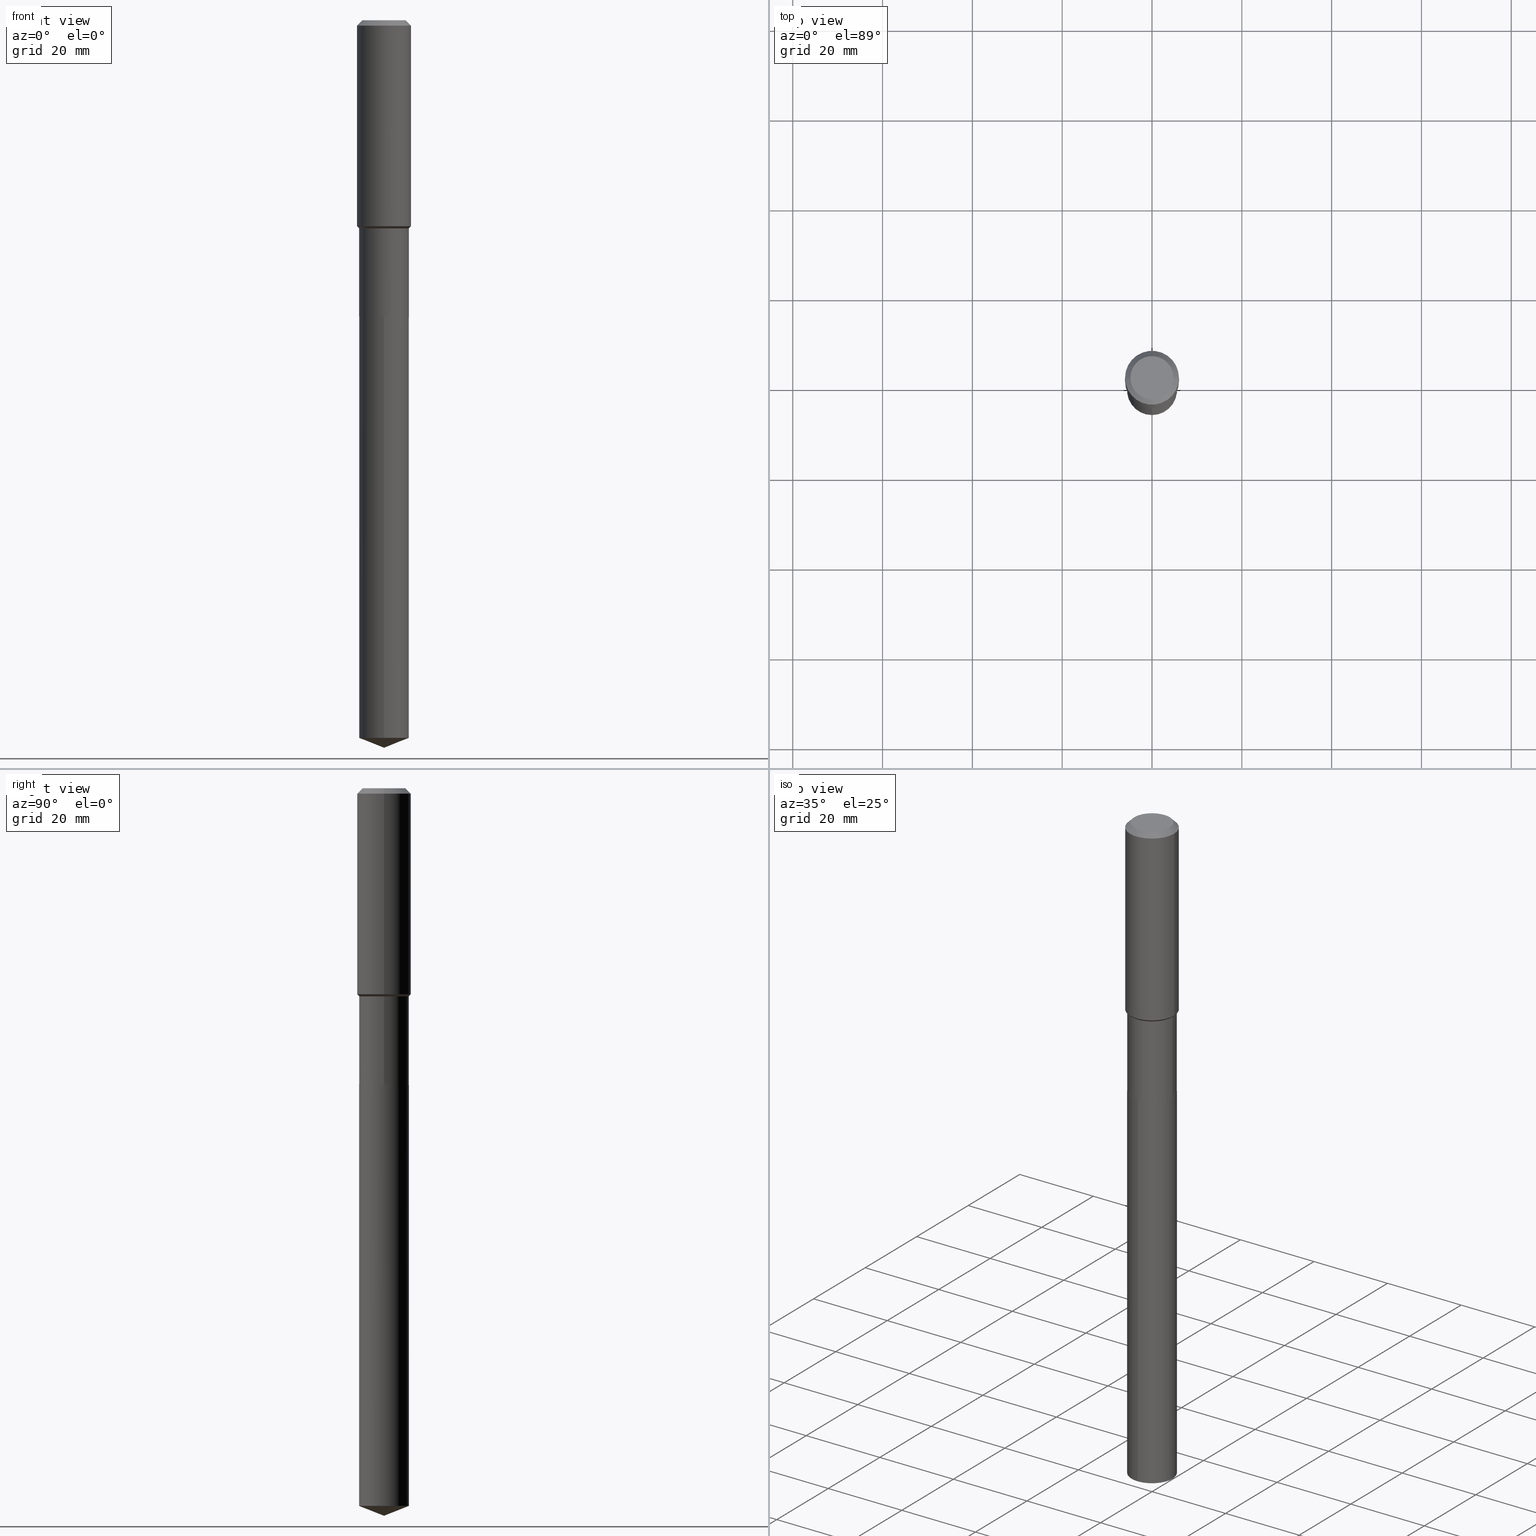
[diagram: canonical four-view strip — front | top / right | iso, engineering-drawing reading convention]
A machine part, canonical four-view strip (front | top / right | iso — engineering-drawing reading convention). The complete STEP part file that produces these views, byte-faithful:
ISO-10303-21;
HEADER;
FILE_DESCRIPTION (( 'STEP AP203' ),
    '1' );
FILE_NAME ('66687.STEP',
    '2024-04-25T03:43:11',
    ( '' ),
    ( '' ),
    'SwSTEP 2.0',
    'SolidWorks 2023',
    '' );
FILE_SCHEMA (( 'CONFIG_CONTROL_DESIGN' ));
ENDSEC;

DATA;
#1 = CONICAL_SURFACE ( 'NONE', #105, 0.2184999999999999165, 0.7853981633974511656 ) ;
#2 = FACE_OUTER_BOUND ( 'NONE', #185, .T. ) ;
#3 = AXIS2_PLACEMENT_3D ( 'NONE', #376, #184, #103 ) ;
#4 = DIRECTION ( 'NONE',  ( 2.445468806185136597E-29, -3.491481338843145583E-15, -1.000000000000000000 ) ) ;
#5 = FACE_OUTER_BOUND ( 'NONE', #130, .T. ) ;
#6 = ORIENTED_EDGE ( 'NONE', *, *, #304, .T. ) ;
#7 =( NAMED_UNIT ( * ) PLANE_ANGLE_UNIT ( ) SI_UNIT ( $, .RADIAN. ) );
#8 = ORIENTED_EDGE ( 'NONE', *, *, #232, .T. ) ;
#9 = EDGE_CURVE ( 'NONE', #129, #104, #203, .T. ) ;
#10 = CC_DESIGN_SECURITY_CLASSIFICATION ( #253, ( #198 ) ) ;
#11 = DIRECTION ( 'NONE',  ( 1.000000000000000000, -6.982962677686266711E-15, 4.876176775795935793E-29 ) ) ;
#12 = LINE ( 'NONE', #320, #197 ) ;
#13 = CALENDAR_DATE ( 2024, 24, 4 ) ;
#14 = CARTESIAN_POINT ( 'NONE',  ( 0.000000000000000000, 0.000000000000000000, 0.000000000000000000 ) ) ;
#15 = PRODUCT ( '66687', '66687', '', ( #349 ) ) ;
#16 = FACE_OUTER_BOUND ( 'NONE', #456, .T. ) ;
#17 = AXIS2_PLACEMENT_3D ( 'NONE', #361, #56, #213 ) ;
#18 = CC_DESIGN_DATE_AND_TIME_ASSIGNMENT ( #92, #53, ( #249 ) ) ;
#19 = DIRECTION ( 'NONE',  ( -2.445449169258695004E-29, 3.491509460039474509E-15, 1.000000000000000000 ) ) ;
#20 = APPROVAL_ROLE ( '' ) ;
#21 = DIRECTION ( 'NONE',  ( 1.000000000000000000, -6.982962677686270655E-15, 0.000000000000000000 ) ) ;
#22 = DIRECTION ( 'NONE',  ( -2.445449169258695004E-29, 3.491509460039474509E-15, 1.000000000000000000 ) ) ;
#23 = CC_DESIGN_APPROVAL ( #201, ( #253 ) ) ;
#24 = LOCAL_TIME ( 23, 43, 11.00000000000000000, #291 ) ;
#25 = CARTESIAN_POINT ( 'NONE',  ( 0.000000000000000000, 0.000000000000000000, 0.000000000000000000 ) ) ;
#26 = ORIENTED_EDGE ( 'NONE', *, *, #133, .F. ) ;
#27 = PLANE ( 'NONE',  #3 ) ;
#28 = ADVANCED_FACE ( 'NONE', ( #2 ), #219, .T. ) ;
#29 = ORIENTED_EDGE ( 'NONE', *, *, #387, .T. ) ;
#30 = EDGE_CURVE ( 'NONE', #150, #463, #12, .T. ) ;
#31 = CARTESIAN_POINT ( 'NONE',  ( -9.427742298522546243E-47, 1.346031739168365344E-32, 3.855188123715862256E-18 ) ) ;
#32 = VERTEX_POINT ( 'NONE', #246 ) ;
#33 = EDGE_CURVE ( 'NONE', #104, #265, #310, .T. ) ;
#34 = CIRCLE ( 'NONE', #161, 0.2361999999999999933 ) ;
#35 = DIRECTION ( 'NONE',  ( 1.000000000000000000, -6.982962677686269077E-15, 0.000000000000000000 ) ) ;
#36 = DIRECTION ( 'NONE',  ( -2.445468806185136597E-29, 3.491481338843145583E-15, 1.000000000000000000 ) ) ;
#37 = ORIENTED_EDGE ( 'NONE', *, *, #193, .T. ) ;
#38 =( LENGTH_UNIT ( ) NAMED_UNIT ( * ) SI_UNIT ( $, .METRE. ) );
#39 = CARTESIAN_POINT ( 'NONE',  ( 1.559683025661503327E-28, -2.226849818518576806E-14, -6.377900000000001235 ) ) ;
#40 = DIRECTION ( 'NONE',  ( 1.000000000000000000, 0.000000000000000000, 0.000000000000000000 ) ) ;
#41 = CIRCLE ( 'NONE', #355, 0.2362000000000002153 ) ;
#42 = ORIENTED_EDGE ( 'NONE', *, *, #335, .F. ) ;
#43 = CIRCLE ( 'NONE', #443, 0.2184999999999999165 ) ;
#44 = FACE_OUTER_BOUND ( 'NONE', #239, .T. ) ;
#45 = VERTEX_POINT ( 'NONE', #313 ) ;
#46 = CARTESIAN_POINT ( 'NONE',  ( 1.552535877635972930E-15, 0.2184999999999909237, -2.598400000000001597 ) ) ;
#47 = DIRECTION ( 'NONE',  ( -2.445449169258695004E-29, 3.491509460039474509E-15, 1.000000000000000000 ) ) ;
#48 = CC_DESIGN_PERSON_AND_ORGANIZATION_ASSIGNMENT ( #470, #360, ( #249 ) ) ;
#49 = ORIENTED_EDGE ( 'NONE', *, *, #206, .F. ) ;
#50 = DIMENSIONAL_EXPONENTS ( 1.000000000000000000, 0.000000000000000000, 0.000000000000000000, 0.000000000000000000, 0.000000000000000000, 0.000000000000000000, 0.000000000000000000 ) ;
#51 = AXIS2_PLACEMENT_3D ( 'NONE', #31, #151, #179 ) ;
#52 = AXIS2_PLACEMENT_3D ( 'NONE', #240, #385, #40 ) ;
#53 = DATE_TIME_ROLE ( 'creation_date' ) ;
#54 = DIRECTION ( 'NONE',  ( -2.445449169258695004E-29, 3.491509460039474509E-15, 1.000000000000000000 ) ) ;
#55 = CALENDAR_DATE ( 2024, 24, 4 ) ;
#56 = DIRECTION ( 'NONE',  ( -2.445468806185136597E-29, 3.491481338843145583E-15, 1.000000000000000000 ) ) ;
#57 = DIRECTION ( 'NONE',  ( -6.982962677686265922E-15, -1.000000000000000000, 2.500547362621751271E-15 ) ) ;
#58 = CONICAL_SURFACE ( 'NONE', #448, 0.2184999999999999165, 0.7853981633974511656 ) ;
#59 = AXIS2_PLACEMENT_3D ( 'NONE', #25, #36, #336 ) ;
#60 = PERSON_AND_ORGANIZATION ( #356, #389 ) ;
#61 = DIRECTION ( 'NONE',  ( -2.445468806185136597E-29, 3.491481338843145583E-15, 1.000000000000000000 ) ) ;
#62 = ADVANCED_FACE ( 'NONE', ( #196 ), #461, .F. ) ;
#63 = COORDINATED_UNIVERSAL_TIME_OFFSET ( 5, 0, .BEHIND. ) ;
#64 = CARTESIAN_POINT ( 'NONE',  ( 0.2179999999999999993, -1.059455097458564211E-14, -2.598400000000001597 ) ) ;
#65 = DIRECTION ( 'NONE',  ( -2.445468806185136597E-29, 3.491481338843145583E-15, 1.000000000000000000 ) ) ;
#66 = VECTOR ( 'NONE', #482, 39.37007874015748143 ) ;
#67 = CARTESIAN_POINT ( 'NONE',  ( -0.2362000000000001043, 1.678301941865357380E-15, -1.161852468318209317E-29 ) ) ;
#68 = EDGE_LOOP ( 'NONE', ( #205, #422 ) ) ;
#69 = CARTESIAN_POINT ( 'NONE',  ( -1.525777345074385639E-15, -0.2185000000000090759, -2.598400000000000265 ) ) ;
#70 = ORIENTED_EDGE ( 'NONE', *, *, #333, .T. ) ;
#71 = CARTESIAN_POINT ( 'NONE',  ( 6.354306145991460877E-29, -9.072265110850034200E-15, -2.598400000000000709 ) ) ;
#72 = VERTEX_POINT ( 'NONE', #224 ) ;
#73 = AXIS2_PLACEMENT_3D ( 'NONE', #444, #327, #323 ) ;
#74 = DIRECTION ( 'NONE',  ( -2.445468806185136877E-29, 3.491481338843145188E-15, 1.000000000000000000 ) ) ;
#75 = CONICAL_SURFACE ( 'NONE', #281, 0.2179999999999999993, 0.7853981633967311859 ) ;
#76 = ADVANCED_FACE ( 'NONE', ( #16 ), #368, .T. ) ;
#77 = DIRECTION ( 'NONE',  ( -0.7071067811865495711, 7.493145998870362049E-15, 0.7071067811865454633 ) ) ;
#78 = ORIENTED_EDGE ( 'NONE', *, *, #335, .T. ) ;
#79 = ORIENTED_EDGE ( 'NONE', *, *, #214, .F. ) ;
#80 = LINE ( 'NONE', #274, #341 ) ;
#81 = ORIENTED_EDGE ( 'NONE', *, *, #206, .T. ) ;
#82 = CARTESIAN_POINT ( 'NONE',  ( -0.2184999999999999443, 1.552535877635818510E-15, -1.074787317220696738E-29 ) ) ;
#83 = CARTESIAN_POINT ( 'NONE',  ( 1.155239464041865331E-30, -1.649375784469511612E-16, -0.04724000000000027483 ) ) ;
#84 = EDGE_CURVE ( 'NONE', #265, #386, #287, .T. ) ;
#85 = UNCERTAINTY_MEASURE_WITH_UNIT (LENGTH_MEASURE( 1.000000000000000082E-05 ), #204, 'distance_accuracy_value', 'NONE');
#86 = CARTESIAN_POINT ( 'NONE',  ( 6.353083411588368076E-29, -9.070519370180611907E-15, -2.597900000000000542 ) ) ;
#87 = ORIENTED_EDGE ( 'NONE', *, *, #383, .F. ) ;
#88 = APPLICATION_PROTOCOL_DEFINITION ( 'international standard', 'config_control_design', 1994, #417 ) ;
#89 = CARTESIAN_POINT ( 'NONE',  ( -0.2361999999999999933, 1.484438206022545019E-15, -0.04724000000000027483 ) ) ;
#90 = CONICAL_SURFACE ( 'NONE', #432, 99.94676754583952061, 1.195550537616117959 ) ;
#91 = CIRCLE ( 'NONE', #364, 0.2184999999999999998 ) ;
#92 = DATE_AND_TIME ( #13, #458 ) ;
#93 = DIRECTION ( 'NONE',  ( -2.438088387897960049E-29, 3.491481338843145188E-15, 1.000000000000000000 ) ) ;
#94 = PERSON_AND_ORGANIZATION_ROLE ( 'creator' ) ;
#95 = DIRECTION ( 'NONE',  ( -0.7071067811860403118, 7.493145998868519270E-15, 0.7071067811870545006 ) ) ;
#96 = APPROVAL_DATE_TIME ( #167, #108 ) ;
#97 = CARTESIAN_POINT ( 'NONE',  ( 6.354306145991461998E-29, -9.072265110850035778E-15, -2.598400000000001597 ) ) ;
#98 = AXIS2_PLACEMENT_3D ( 'NONE', #14, #329, #168 ) ;
#99 = AXIS2_PLACEMENT_3D ( 'NONE', #71, #415, #264 ) ;
#100 = CARTESIAN_POINT ( 'NONE',  ( 4.460779649362309937E-29, -6.368811110183784911E-15, -1.824100000000000943 ) ) ;
#101 = EDGE_CURVE ( 'NONE', #265, #104, #293, .T. ) ;
#102 = FACE_OUTER_BOUND ( 'NONE', #200, .T. ) ;
#103 = DIRECTION ( 'NONE',  ( -1.000000000000000000, 6.982962677686265922E-15, -4.876176775795935793E-29 ) ) ;
#104 = VERTEX_POINT ( 'NONE', #261 ) ;
#105 = AXIS2_PLACEMENT_3D ( 'NONE', #100, #402, #295 ) ;
#106 = CONICAL_SURFACE ( 'NONE', #235, 0.2361999999999999933, 0.7853981633974452814 ) ;
#107 = CYLINDRICAL_SURFACE ( 'NONE', #59, 0.2184999999999999443 ) ;
#108 = APPROVAL ( #366, 'UNSPECIFIED' ) ;
#109 = DIRECTION ( 'NONE',  ( -6.982962677686265922E-15, -1.000000000000000000, 2.500547362621751271E-15 ) ) ;
#110 = FACE_OUTER_BOUND ( 'NONE', #153, .T. ) ;
#111 = EDGE_LOOP ( 'NONE', ( #269, #26 ) ) ;
#112 = AXIS2_PLACEMENT_3D ( 'NONE', #146, #227, #109 ) ;
#113 = CARTESIAN_POINT ( 'NONE',  ( 1.155239464041865331E-30, -1.649375784469511612E-16, -0.04724000000000027483 ) ) ;
#114 = EDGE_CURVE ( 'NONE', #343, #359, #395, .T. ) ;
#115 = VECTOR ( 'NONE', #338, 39.37007874015748143 ) ;
#116 = ORIENTED_EDGE ( 'NONE', *, *, #33, .T. ) ;
#117 = DIRECTION ( 'NONE',  ( 1.000000000000000000, -6.982962677686266711E-15, 0.000000000000000000 ) ) ;
#118 = ORIENTED_EDGE ( 'NONE', *, *, #413, .F. ) ;
#119 = ADVANCED_FACE ( 'NONE', ( #363 ), #90, .T. ) ;
#120 = DIRECTION ( 'NONE',  ( -2.445468806185136597E-29, 3.491481338843145583E-15, 1.000000000000000000 ) ) ;
#121 = ADVANCED_FACE ( 'NONE', ( #400 ), #218, .T. ) ;
#122 = ORIENTED_EDGE ( 'NONE', *, *, #438, .F. ) ;
#123 = ADVANCED_FACE ( 'NONE', ( #406 ), #177, .T. ) ;
#124 = LENGTH_MEASURE_WITH_UNIT ( LENGTH_MEASURE( 0.02539999999999999897 ), #38 );
#125 = AXIS2_PLACEMENT_3D ( 'NONE', #288, #292, #144 ) ;
#126 = ORIENTED_EDGE ( 'NONE', *, *, #319, .F. ) ;
#127 = APPROVAL ( #256, 'UNSPECIFIED' ) ;
#128 = VECTOR ( 'NONE', #423, 39.37007874015748143 ) ;
#129 = VERTEX_POINT ( 'NONE', #141 ) ;
#130 = EDGE_LOOP ( 'NONE', ( #459, #371, #230, #305 ) ) ;
#131 = PERSON_AND_ORGANIZATION_ROLE ( 'classification_officer' ) ;
#132 = CARTESIAN_POINT ( 'NONE',  ( 6.354306145991461998E-29, -9.072265110850035778E-15, -2.598400000000001597 ) ) ;
#133 = EDGE_CURVE ( 'NONE', #162, #150, #176, .T. ) ;
#134 = PRODUCT_RELATED_PRODUCT_CATEGORY ( 'detail', '', ( #15 ) ) ;
#135 = LOCAL_TIME ( 23, 43, 11.00000000000000000, #63 ) ;
#136 = MANIFOLD_SOLID_BREP ( 'Body-Move/Copy2[1]', #464 ) ;
#137 = COORDINATED_UNIVERSAL_TIME_OFFSET ( 5, 0, .BEHIND. ) ;
#138 = DIRECTION ( 'NONE',  ( 1.000000000000000000, -6.982962677686270655E-15, 0.000000000000000000 ) ) ;
#139 = DIRECTION ( 'NONE',  ( -2.445468806185136597E-29, 3.491481338843145583E-15, 1.000000000000000000 ) ) ;
#140 = DATE_AND_TIME ( #55, #465 ) ;
#141 = CARTESIAN_POINT ( 'NONE',  ( 1.559683025661503327E-28, -2.226849818518576806E-14, -6.377900000000001235 ) ) ;
#142 = EDGE_CURVE ( 'NONE', #162, #155, #471, .T. ) ;
#143 = VECTOR ( 'NONE', #485, 39.37007874015748143 ) ;
#144 = DIRECTION ( 'NONE',  ( 1.000000000000000000, -6.982962677686266711E-15, 0.000000000000000000 ) ) ;
#145 = CARTESIAN_POINT ( 'NONE',  ( -1.525777345074385639E-15, -0.2185000000000090759, -2.598400000000000265 ) ) ;
#146 = CARTESIAN_POINT ( 'NONE',  ( 6.354306145991460877E-29, -9.072265110850034200E-15, -2.598400000000000709 ) ) ;
#147 = ADVANCED_FACE ( 'NONE', ( #175 ), #280, .T. ) ;
#148 = VECTOR ( 'NONE', #95, 39.37007874015748854 ) ;
#149 = CARTESIAN_POINT ( 'NONE',  ( 6.353083411588368076E-29, -9.070519370180611907E-15, -2.597900000000000542 ) ) ;
#150 = VERTEX_POINT ( 'NONE', #64 ) ;
#151 = DIRECTION ( 'NONE',  ( -2.445468806185136597E-29, 3.491481338843145583E-15, 1.000000000000000000 ) ) ;
#152 = CARTESIAN_POINT ( 'NONE',  ( -0.2362000000000002153, -4.628709948620903346E-15, -1.806400000000000672 ) ) ;
#153 = EDGE_LOOP ( 'NONE', ( #248, #166, #8, #483 ) ) ;
#154 = VECTOR ( 'NONE', #189, 39.37007874015748143 ) ;
#155 = VERTEX_POINT ( 'NONE', #405 ) ;
#156 = CARTESIAN_POINT ( 'NONE',  ( 0.2184999999999999165, -7.894588455258233461E-15, -1.824100000000000943 ) ) ;
#157 = DIRECTION ( 'NONE',  ( 0.7071067811860403118, -2.468850131076945266E-15, 0.7071067811870545006 ) ) ;
#158 = ORIENTED_EDGE ( 'NONE', *, *, #420, .T. ) ;
#159 = EDGE_CURVE ( 'NONE', #314, #298, #226, .T. ) ;
#160 = LINE ( 'NONE', #382, #128 ) ;
#161 = AXIS2_PLACEMENT_3D ( 'NONE', #487, #303, #268 ) ;
#162 = VERTEX_POINT ( 'NONE', #334 ) ;
#163 = AXIS2_PLACEMENT_3D ( 'NONE', #407, #65, #466 ) ;
#164 = EDGE_CURVE ( 'NONE', #337, #45, #41, .T. ) ;
#165 = APPROVAL_DATE_TIME ( #140, #201 ) ;
#166 = ORIENTED_EDGE ( 'NONE', *, *, #101, .T. ) ;
#167 = DATE_AND_TIME ( #397, #396 ) ;
#168 = DIRECTION ( 'NONE',  ( 1.000000000000000000, -6.982962677686266711E-15, 4.876176775795935793E-29 ) ) ;
#169 = DIRECTION ( 'NONE',  ( 1.000000000000000000, -6.982962677686266711E-15, 0.000000000000000000 ) ) ;
#170 = AXIS2_PLACEMENT_3D ( 'NONE', #255, #61, #174 ) ;
#171 = APPROVAL_PERSON_ORGANIZATION ( #286, #201, #215 ) ;
#172 = DIRECTION ( 'NONE',  ( -2.445468806185136597E-29, 3.491481338843145583E-15, 1.000000000000000000 ) ) ;
#173 = COORDINATED_UNIVERSAL_TIME_OFFSET ( 5, 0, .BEHIND. ) ;
#174 = DIRECTION ( 'NONE',  ( 1.000000000000000000, -6.982962677686266711E-15, 4.876185090822587894E-29 ) ) ;
#175 = FACE_OUTER_BOUND ( 'NONE', #339, .T. ) ;
#176 = CIRCLE ( 'NONE', #266, 0.2179999999999999993 ) ;
#177 = CONICAL_SURFACE ( 'NONE', #273, 99.94676754583952061, 1.195550537616117959 ) ;
#178 = CC_DESIGN_APPROVAL ( #108, ( #249 ) ) ;
#179 = DIRECTION ( 'NONE',  ( 1.000000000000000000, -6.982962677686266711E-15, 4.876185090822587894E-29 ) ) ;
#180 = ORIENTED_EDGE ( 'NONE', *, *, #383, .T. ) ;
#181 = CARTESIAN_POINT ( 'NONE',  ( 4.460779649362309937E-29, -6.368811110183784911E-15, -1.824100000000000943 ) ) ;
#182 = EDGE_CURVE ( 'NONE', #72, #32, #325, .T. ) ;
#183 = ORIENTED_EDGE ( 'NONE', *, *, #387, .F. ) ;
#184 = DIRECTION ( 'NONE',  ( 2.438088387897960049E-29, -3.491481338843145188E-15, -1.000000000000000000 ) ) ;
#185 = EDGE_LOOP ( 'NONE', ( #122, #126, #37, #309 ) ) ;
#186 = ADVANCED_FACE ( 'NONE', ( #216 ), #1, .T. ) ;
#187 = AXIS2_PLACEMENT_3D ( 'NONE', #132, #172, #138 ) ;
#188 = CC_DESIGN_APPROVAL ( #127, ( #198 ) ) ;
#189 = DIRECTION ( 'NONE',  ( -2.445468806185136877E-29, 3.491481338843145188E-15, 1.000000000000000000 ) ) ;
#190 = ORIENTED_EDGE ( 'NONE', *, *, #84, .T. ) ;
#191 = PRODUCT_DEFINITION_SHAPE ( 'NONE', 'NONE',  #249 ) ;
#192 = LINE ( 'NONE', #270, #115 ) ;
#193 = EDGE_CURVE ( 'NONE', #298, #72, #474, .T. ) ;
#194 = ORIENTED_EDGE ( 'NONE', *, *, #142, .F. ) ;
#195 =( NAMED_UNIT ( * ) SI_UNIT ( $, .STERADIAN. ) SOLID_ANGLE_UNIT ( ) );
#196 = FACE_OUTER_BOUND ( 'NONE', #111, .T. ) ;
#197 = VECTOR ( 'NONE', #157, 39.37007874015748854 ) ;
#198 = PRODUCT_DEFINITION_FORMATION_WITH_SPECIFIED_SOURCE ( 'ANY', '', #15, .NOT_KNOWN. ) ;
#199 = APPLICATION_PROTOCOL_DEFINITION ( 'international standard', 'config_control_design', 1994, #211 ) ;
#200 = EDGE_LOOP ( 'NONE', ( #118, #78, #375, #228 ) ) ;
#201 = APPROVAL ( #434, 'UNSPECIFIED' ) ;
#202 = DIRECTION ( 'NONE',  ( -1.000000000000000000, 6.982962677686266711E-15, 0.000000000000000000 ) ) ;
#203 = LINE ( 'NONE', #39, #242 ) ;
#204 =( CONVERSION_BASED_UNIT ( 'INCH', #124 ) LENGTH_UNIT ( ) NAMED_UNIT ( #50 ) );
#205 = ORIENTED_EDGE ( 'NONE', *, *, #319, .T. ) ;
#206 = EDGE_CURVE ( 'NONE', #285, #386, #442, .T. ) ;
#207 = DIRECTION ( 'NONE',  ( 6.611014441532061856E-15, 0.9304175679820264611, 0.3665012267242919175 ) ) ;
#208 = VECTOR ( 'NONE', #74, 39.37007874015748143 ) ;
#209 = EDGE_LOOP ( 'NONE', ( #116, #190, #49, #391 ) ) ;
#210 = AXIS2_PLACEMENT_3D ( 'NONE', #243, #120, #117 ) ;
#211 = APPLICATION_CONTEXT ( 'configuration controlled 3d designs of mechanical parts and assemblies' ) ;
#212 = PERSON_AND_ORGANIZATION ( #356, #389 ) ;
#213 = DIRECTION ( 'NONE',  ( 1.000000000000000000, -6.982962677686266711E-15, 0.000000000000000000 ) ) ;
#214 = EDGE_CURVE ( 'NONE', #463, #359, #344, .T. ) ;
#215 = APPROVAL_ROLE ( '' ) ;
#216 = FACE_OUTER_BOUND ( 'NONE', #272, .T. ) ;
#217 = ADVANCED_FACE ( 'NONE', ( #409 ), #58, .T. ) ;
#218 = CYLINDRICAL_SURFACE ( 'NONE', #457, 0.2184999999999999443 ) ;
#219 = CONICAL_SURFACE ( 'NONE', #408, 0.2361999999999999933, 0.7853981633974452814 ) ;
#220 = ADVANCED_BREP_SHAPE_REPRESENTATION ( '66687', ( #136, #299, #52 ), #433 ) ;
#221 = APPROVAL_DATE_TIME ( #430, #127 ) ;
#222 = CARTESIAN_POINT ( 'NONE',  ( 4.417494851492832724E-29, -6.307011890486260529E-15, -1.806400000000000672 ) ) ;
#223 = CALENDAR_DATE ( 2024, 24, 4 ) ;
#224 = CARTESIAN_POINT ( 'NONE',  ( -0.2361999999999999933, -1.557672792601248144E-15, -0.04724000000000027483 ) ) ;
#225 = DIRECTION ( 'NONE',  ( -6.982962677686265922E-15, -1.000000000000000000, 2.500547362621751271E-15 ) ) ;
#226 = CIRCLE ( 'NONE', #170, 0.1889600000000000168 ) ;
#227 = DIRECTION ( 'NONE',  ( -2.445449169258695004E-29, 3.491509460039474509E-15, 1.000000000000000000 ) ) ;
#228 = ORIENTED_EDGE ( 'NONE', *, *, #114, .F. ) ;
#229 = LINE ( 'NONE', #145, #66 ) ;
#230 = ORIENTED_EDGE ( 'NONE', *, *, #469, .F. ) ;
#231 = CARTESIAN_POINT ( 'NONE',  ( 0.1889600000000000168, -1.540873453589747738E-15, 3.855188123725863225E-18 ) ) ;
#232 = EDGE_CURVE ( 'NONE', #104, #285, #229, .T. ) ;
#233 = AXIS2_PLACEMENT_3D ( 'NONE', #354, #47, #468 ) ;
#234 = CC_DESIGN_PERSON_AND_ORGANIZATION_ASSIGNMENT ( #362, #131, ( #253 ) ) ;
#235 = AXIS2_PLACEMENT_3D ( 'NONE', #113, #247, #202 ) ;
#236 = CARTESIAN_POINT ( 'NONE',  ( -0.1889600000000000168, 1.401969416799070942E-15, 3.855188123706346622E-18 ) ) ;
#237 = ORIENTED_EDGE ( 'NONE', *, *, #262, .F. ) ;
#238 = DIRECTION ( 'NONE',  ( -2.445468806185136597E-29, 3.491481338843145583E-15, 1.000000000000000000 ) ) ;
#239 = EDGE_LOOP ( 'NONE', ( #467, #394, #244, #489 ) ) ;
#240 = CARTESIAN_POINT ( 'NONE',  ( 0.000000000000000000, 0.000000000000000000, 0.000000000000000000 ) ) ;
#241 = EDGE_LOOP ( 'NONE', ( #237, #418, #6, #377 ) ) ;
#242 = VECTOR ( 'NONE', #283, 39.37007874015748854 ) ;
#243 = CARTESIAN_POINT ( 'NONE',  ( 4.417494851492832724E-29, -6.307011890486260529E-15, -1.806400000000000672 ) ) ;
#244 = ORIENTED_EDGE ( 'NONE', *, *, #296, .T. ) ;
#245 = CYLINDRICAL_SURFACE ( 'NONE', #316, 0.2362000000000001043 ) ;
#246 = CARTESIAN_POINT ( 'NONE',  ( 0.2361999999999999933, -1.814313362916447440E-15, -0.04724000000000027483 ) ) ;
#247 = DIRECTION ( 'NONE',  ( 2.445468806185136597E-29, -3.491481338843145583E-15, -1.000000000000000000 ) ) ;
#248 = ORIENTED_EDGE ( 'NONE', *, *, #84, .F. ) ;
#249 = PRODUCT_DEFINITION ( 'UNKNOWN', '', #198, #294 ) ;
#250 = AXIS2_PLACEMENT_3D ( 'NONE', #347, #93, #435 ) ;
#251 = APPROVAL_PERSON_ORGANIZATION ( #473, #127, #259 ) ;
#252 = DIRECTION ( 'NONE',  ( -2.445468806185136597E-29, 3.491481338843145583E-15, 1.000000000000000000 ) ) ;
#253 = SECURITY_CLASSIFICATION ( '', '', #477 ) ;
#254 = DATE_TIME_ROLE ( 'classification_date' ) ;
#255 = CARTESIAN_POINT ( 'NONE',  ( -9.427742298522546243E-47, 1.346031739168365344E-32, 3.855188123715862256E-18 ) ) ;
#256 = APPROVAL_STATUS ( 'not_yet_approved' ) ;
#257 = DIRECTION ( 'NONE',  ( -6.982962677686267499E-15, -1.000000000000000000, 3.498627837350020000E-15 ) ) ;
#258 = EDGE_CURVE ( 'NONE', #386, #285, #484, .T. ) ;
#259 = APPROVAL_ROLE ( '' ) ;
#260 = CARTESIAN_POINT ( 'NONE',  ( -8.068064506756283072E-28, 1.151925772486896208E-13, 32.99217874015747753 ) ) ;
#261 = CARTESIAN_POINT ( 'NONE',  ( -1.525777345074295314E-15, -0.2185000000000220099, -6.291830561078135098 ) ) ;
#262 = EDGE_CURVE ( 'NONE', #337, #72, #452, .T. ) ;
#263 = CYLINDRICAL_SURFACE ( 'NONE', #315, 0.2184999999999999998 ) ;
#264 = DIRECTION ( 'NONE',  ( 6.982962677686265922E-15, 1.000000000000000000, -3.491509460039474509E-15 ) ) ;
#265 = VERTEX_POINT ( 'NONE', #374 ) ;
#266 = AXIS2_PLACEMENT_3D ( 'NONE', #97, #332, #21 ) ;
#267 = CIRCLE ( 'NONE', #210, 0.2362000000000002153 ) ;
#268 = DIRECTION ( 'NONE',  ( 1.000000000000000000, -6.982962677686266711E-15, 0.000000000000000000 ) ) ;
#269 = ORIENTED_EDGE ( 'NONE', *, *, #346, .F. ) ;
#270 = CARTESIAN_POINT ( 'NONE',  ( 0.2184999999999999165, -7.894588455258233461E-15, -1.824100000000000943 ) ) ;
#271 = PLANE ( 'NONE',  #99 ) ;
#272 = EDGE_LOOP ( 'NONE', ( #87, #486, #70, #311 ) ) ;
#273 = AXIS2_PLACEMENT_3D ( 'NONE', #289, #19, #440 ) ;
#274 = CARTESIAN_POINT ( 'NONE',  ( -0.2184999999999999165, -4.816275232547967386E-15, -1.824100000000000943 ) ) ;
#275 = CARTESIAN_POINT ( 'NONE',  ( 6.354306145991461998E-29, -9.072265110850035778E-15, -2.598400000000001597 ) ) ;
#276 = ORIENTED_EDGE ( 'NONE', *, *, #133, .T. ) ;
#277 = ADVANCED_FACE ( 'NONE', ( #110 ), #370, .T. ) ;
#278 = DIRECTION ( 'NONE',  ( -2.445468806185136877E-29, 3.491481338843145188E-15, 1.000000000000000000 ) ) ;
#279 = ORIENTED_EDGE ( 'NONE', *, *, #258, .T. ) ;
#280 = CONICAL_SURFACE ( 'NONE', #187, 0.2179999999999999993, 0.7853981633967311859 ) ;
#281 = AXIS2_PLACEMENT_3D ( 'NONE', #275, #317, #421 ) ;
#282 = CARTESIAN_POINT ( 'NONE',  ( 0.000000000000000000, 0.000000000000000000, 0.000000000000000000 ) ) ;
#283 = DIRECTION ( 'NONE',  ( -6.497071151882115892E-15, -0.9304175679820240186, 0.3665012267242985233 ) ) ;
#284 = ORIENTED_EDGE ( 'NONE', *, *, #413, .T. ) ;
#285 = VERTEX_POINT ( 'NONE', #69 ) ;
#286 = PERSON_AND_ORGANIZATION ( #356, #389 ) ;
#287 = LINE ( 'NONE', #476, #302 ) ;
#288 = CARTESIAN_POINT ( 'NONE',  ( 1.155239464041865331E-30, -1.649375784469511612E-16, -0.04724000000000027483 ) ) ;
#289 = CARTESIAN_POINT ( 'NONE',  ( -8.068064506756283072E-28, 1.151925772486896208E-13, 32.99217874015747753 ) ) ;
#290 = ADVANCED_FACE ( 'NONE', ( #490 ), #263, .T. ) ;
#291 = COORDINATED_UNIVERSAL_TIME_OFFSET ( 5, 0, .BEHIND. ) ;
#292 = DIRECTION ( 'NONE',  ( -2.445468806185136597E-29, 3.491481338843145583E-15, 1.000000000000000000 ) ) ;
#293 = CIRCLE ( 'NONE', #73, 0.2184999999999999998 ) ;
#294 = DESIGN_CONTEXT ( 'detailed design', #417, 'design' ) ;
#295 = DIRECTION ( 'NONE',  ( 1.000000000000000000, -6.982962677686266711E-15, 0.000000000000000000 ) ) ;
#296 = EDGE_CURVE ( 'NONE', #32, #72, #34, .T. ) ;
#297 = DIRECTION ( 'NONE',  ( -2.445449169258695004E-29, 3.491509460039474509E-15, 1.000000000000000000 ) ) ;
#298 = VERTEX_POINT ( 'NONE', #236 ) ;
#299 = MANIFOLD_SOLID_BREP ( 'Body-Move/Copy2[2]', #472 ) ;
#300 = CARTESIAN_POINT ( 'NONE',  ( 6.354306145991460877E-29, -9.072265110850034200E-15, -2.598400000000000709 ) ) ;
#301 = ORIENTED_EDGE ( 'NONE', *, *, #296, .F. ) ;
#302 = VECTOR ( 'NONE', #22, 39.37007874015748143 ) ;
#303 = DIRECTION ( 'NONE',  ( -2.445468806185136597E-29, 3.491481338843145583E-15, 1.000000000000000000 ) ) ;
#304 = EDGE_CURVE ( 'NONE', #45, #32, #446, .T. ) ;
#305 = ORIENTED_EDGE ( 'NONE', *, *, #30, .F. ) ;
#306 = FACE_OUTER_BOUND ( 'NONE', #68, .T. ) ;
#307 = ORIENTED_EDGE ( 'NONE', *, *, #420, .F. ) ;
#308 = DIRECTION ( 'NONE',  ( 1.000000000000000000, -6.982962677686269077E-15, 0.000000000000000000 ) ) ;
#309 = ORIENTED_EDGE ( 'NONE', *, *, #182, .T. ) ;
#310 = CIRCLE ( 'NONE', #233, 0.2184999999999999998 ) ;
#311 = ORIENTED_EDGE ( 'NONE', *, *, #164, .F. ) ;
#312 = DIRECTION ( 'NONE',  ( 1.000000000000000000, -6.982962677686266711E-15, 0.000000000000000000 ) ) ;
#313 = CARTESIAN_POINT ( 'NONE',  ( 0.2362000000000002153, -7.956387674955758632E-15, -1.806400000000000672 ) ) ;
#314 = VERTEX_POINT ( 'NONE', #231 ) ;
#315 = AXIS2_PLACEMENT_3D ( 'NONE', #300, #372, #342 ) ;
#316 = AXIS2_PLACEMENT_3D ( 'NONE', #282, #238, #11 ) ;
#317 = DIRECTION ( 'NONE',  ( -2.445468806185136597E-29, 3.491481338843145583E-15, 1.000000000000000000 ) ) ;
#318 = EDGE_LOOP ( 'NONE', ( #183, #381, #350 ) ) ;
#319 = EDGE_CURVE ( 'NONE', #298, #314, #348, .T. ) ;
#320 = CARTESIAN_POINT ( 'NONE',  ( 0.2179999999999999993, -1.059455097458564211E-14, -2.598400000000001597 ) ) ;
#321 = ADVANCED_FACE ( 'NONE', ( #102 ), #107, .T. ) ;
#322 = DATE_AND_TIME ( #223, #24 ) ;
#323 = DIRECTION ( 'NONE',  ( -6.982962677686265922E-15, -1.000000000000000000, 5.001094725243502542E-15 ) ) ;
#324 = PERSON_AND_ORGANIZATION_ROLE ( 'design_supplier' ) ;
#325 = CIRCLE ( 'NONE', #125, 0.2361999999999999933 ) ;
#326 = CIRCLE ( 'NONE', #479, 0.2184999999999999998 ) ;
#327 = DIRECTION ( 'NONE',  ( -2.445449169258695004E-29, 3.491509460039474509E-15, 1.000000000000000000 ) ) ;
#328 = ADVANCED_FACE ( 'NONE', ( #306 ), #27, .F. ) ;
#329 = DIRECTION ( 'NONE',  ( -2.445468806185136597E-29, 3.491481338843145583E-15, 1.000000000000000000 ) ) ;
#330 = ADVANCED_FACE ( 'NONE', ( #449 ), #271, .F. ) ;
#331 = CALENDAR_DATE ( 2024, 24, 4 ) ;
#332 = DIRECTION ( 'NONE',  ( -2.445468806185136597E-29, 3.491481338843145583E-15, 1.000000000000000000 ) ) ;
#333 = EDGE_CURVE ( 'NONE', #359, #45, #192, .T. ) ;
#334 = CARTESIAN_POINT ( 'NONE',  ( -0.2179999999999999993, -7.520632719718905584E-15, -2.598400000000001597 ) ) ;
#335 = EDGE_CURVE ( 'NONE', #155, #463, #91, .T. ) ;
#336 = DIRECTION ( 'NONE',  ( 1.000000000000000000, -6.982962677686266711E-15, 4.876176775795935793E-29 ) ) ;
#337 = VERTEX_POINT ( 'NONE', #152 ) ;
#338 = DIRECTION ( 'NONE',  ( 0.7071067811865495711, -2.468850131082277965E-15, 0.7071067811865454633 ) ) ;
#339 = EDGE_LOOP ( 'NONE', ( #194, #276, #373, #42 ) ) ;
#340 = CARTESIAN_POINT ( 'NONE',  ( 0.2362000000000001043, -1.649375784469496920E-15, 1.151752954443000508E-29 ) ) ;
#341 = VECTOR ( 'NONE', #77, 39.37007874015748143 ) ;
#342 = DIRECTION ( 'NONE',  ( -6.982962677686265922E-15, -1.000000000000000000, 2.500547362621751271E-15 ) ) ;
#343 = VERTEX_POINT ( 'NONE', #412 ) ;
#344 = LINE ( 'NONE', #481, #154 ) ;
#345 = EDGE_LOOP ( 'NONE', ( #411, #29, #453 ) ) ;
#346 = EDGE_CURVE ( 'NONE', #150, #162, #379, .T. ) ;
#347 = CARTESIAN_POINT ( 'NONE',  ( 1.806774175153688123E-29, -1.558458972253556178E-14, -2.598400000000001597 ) ) ;
#348 = CIRCLE ( 'NONE', #51, 0.1889600000000000168 ) ;
#349 = MECHANICAL_CONTEXT ( 'NONE', #211, 'mechanical' ) ;
#350 = ORIENTED_EDGE ( 'NONE', *, *, #101, .F. ) ;
#351 = FACE_OUTER_BOUND ( 'NONE', #241, .T. ) ;
#352 = ORIENTED_EDGE ( 'NONE', *, *, #262, .T. ) ;
#353 = CC_DESIGN_DATE_AND_TIME_ASSIGNMENT ( #322, #254, ( #253 ) ) ;
#354 = CARTESIAN_POINT ( 'NONE',  ( 1.538640284329466373E-28, -2.196791285485324773E-14, -6.291830561078136874 ) ) ;
#355 = AXIS2_PLACEMENT_3D ( 'NONE', #222, #252, #169 ) ;
#356 = PERSON ( 'UNSPECIFIED', 'UNSPECIFIED', 'UNSPECIFIED', ('UNSPECIFIED'), ('UNSPECIFIED'), ('UNSPECIFIED') ) ;
#357 = VECTOR ( 'NONE', #207, 39.37007874015748854 ) ;
#358 = LINE ( 'NONE', #82, #419 ) ;
#359 = VERTEX_POINT ( 'NONE', #156 ) ;
#360 = PERSON_AND_ORGANIZATION_ROLE ( 'creator' ) ;
#361 = CARTESIAN_POINT ( 'NONE',  ( 4.460779649362309937E-29, -6.368811110183784911E-15, -1.824100000000000943 ) ) ;
#362 = PERSON_AND_ORGANIZATION ( #356, #389 ) ;
#363 = FACE_OUTER_BOUND ( 'NONE', #345, .T. ) ;
#364 = AXIS2_PLACEMENT_3D ( 'NONE', #149, #410, #35 ) ;
#365 = DIRECTION ( 'NONE',  ( -2.445449169258695004E-29, 3.491509460039474509E-15, 1.000000000000000000 ) ) ;
#366 = APPROVAL_STATUS ( 'not_yet_approved' ) ;
#367 = DIRECTION ( 'NONE',  ( 1.000000000000000000, -6.982962677686266711E-15, 4.876176775795935793E-29 ) ) ;
#368 = CYLINDRICAL_SURFACE ( 'NONE', #98, 0.2362000000000001043 ) ;
#369 = AXIS2_PLACEMENT_3D ( 'NONE', #398, #54, #57 ) ;
#370 = CYLINDRICAL_SURFACE ( 'NONE', #378, 0.2184999999999999998 ) ;
#371 = ORIENTED_EDGE ( 'NONE', *, *, #142, .T. ) ;
#372 = DIRECTION ( 'NONE',  ( -2.445449169258695004E-29, 3.491509460039474509E-15, 1.000000000000000000 ) ) ;
#373 = ORIENTED_EDGE ( 'NONE', *, *, #30, .T. ) ;
#374 = CARTESIAN_POINT ( 'NONE',  ( 1.552535877635972930E-15, 0.2184999999999780729, -6.291830561078137762 ) ) ;
#375 = ORIENTED_EDGE ( 'NONE', *, *, #214, .T. ) ;
#376 = CARTESIAN_POINT ( 'NONE',  ( -4.713871149261273121E-47, 6.730158695841826722E-33, 1.927594061857931128E-18 ) ) ;
#377 = ORIENTED_EDGE ( 'NONE', *, *, #182, .F. ) ;
#378 = AXIS2_PLACEMENT_3D ( 'NONE', #445, #297, #225 ) ;
#379 = CIRCLE ( 'NONE', #163, 0.2179999999999999993 ) ;
#380 = DIRECTION ( 'NONE',  ( 1.000000000000000000, -6.982962677686266711E-15, 0.000000000000000000 ) ) ;
#381 = ORIENTED_EDGE ( 'NONE', *, *, #9, .T. ) ;
#382 = CARTESIAN_POINT ( 'NONE',  ( 0.2361999999999999933, -1.785387205520586782E-15, -0.04724000000000027483 ) ) ;
#383 = EDGE_CURVE ( 'NONE', #343, #337, #80, .T. ) ;
#384 = DIRECTION ( 'NONE',  ( -1.000000000000000000, 6.982962677686266711E-15, 0.000000000000000000 ) ) ;
#385 = DIRECTION ( 'NONE',  ( 0.000000000000000000, 0.000000000000000000, 1.000000000000000000 ) ) ;
#386 = VERTEX_POINT ( 'NONE', #46 ) ;
#387 = EDGE_CURVE ( 'NONE', #129, #265, #462, .T. ) ;
#388 = VECTOR ( 'NONE', #437, 39.37007874015748143 ) ;
#389 = ORGANIZATION ( 'UNSPECIFIED', 'UNSPECIFIED', '' ) ;
#390 = DIRECTION ( 'NONE',  ( -2.445468806185136597E-29, 3.491481338843145583E-15, 1.000000000000000000 ) ) ;
#391 = ORIENTED_EDGE ( 'NONE', *, *, #232, .F. ) ;
#392 = CC_DESIGN_PERSON_AND_ORGANIZATION_ASSIGNMENT ( #436, #94, ( #198 ) ) ;
#393 = EDGE_LOOP ( 'NONE', ( #81, #279 ) ) ;
#394 = ORIENTED_EDGE ( 'NONE', *, *, #438, .T. ) ;
#395 = CIRCLE ( 'NONE', #17, 0.2184999999999999165 ) ;
#396 = LOCAL_TIME ( 23, 43, 11.00000000000000000, #399 ) ;
#397 = CALENDAR_DATE ( 2024, 24, 4 ) ;
#398 = CARTESIAN_POINT ( 'NONE',  ( 6.354306145991460877E-29, -9.072265110850034200E-15, -2.598400000000000709 ) ) ;
#399 = COORDINATED_UNIVERSAL_TIME_OFFSET ( 5, 0, .BEHIND. ) ;
#400 = FACE_OUTER_BOUND ( 'NONE', #424, .T. ) ;
#401 = SHAPE_DEFINITION_REPRESENTATION ( #191, #220 ) ;
#402 = DIRECTION ( 'NONE',  ( -2.445468806185136597E-29, 3.491481338843145583E-15, 1.000000000000000000 ) ) ;
#403 = PERSON_AND_ORGANIZATION ( #356, #389 ) ;
#404 = APPROVAL_PERSON_ORGANIZATION ( #60, #108, #20 ) ;
#405 = CARTESIAN_POINT ( 'NONE',  ( -0.2184999999999999720, -6.167129362546378913E-15, -2.597900000000000542 ) ) ;
#406 = FACE_OUTER_BOUND ( 'NONE', #318, .T. ) ;
#407 = CARTESIAN_POINT ( 'NONE',  ( 6.354306145991461998E-29, -9.072265110850035778E-15, -2.598400000000001597 ) ) ;
#408 = AXIS2_PLACEMENT_3D ( 'NONE', #83, #4, #384 ) ;
#409 = FACE_OUTER_BOUND ( 'NONE', #429, .T. ) ;
#410 = DIRECTION ( 'NONE',  ( -2.445468806185136597E-29, 3.491481338843145583E-15, 1.000000000000000000 ) ) ;
#411 = ORIENTED_EDGE ( 'NONE', *, *, #9, .F. ) ;
#412 = CARTESIAN_POINT ( 'NONE',  ( -0.2184999999999999165, -6.167129362546379702E-15, -1.824100000000000943 ) ) ;
#413 = EDGE_CURVE ( 'NONE', #155, #343, #358, .T. ) ;
#414 = ORIENTED_EDGE ( 'NONE', *, *, #416, .T. ) ;
#415 = DIRECTION ( 'NONE',  ( 2.445449169258694724E-29, -3.491509460039474509E-15, -1.000000000000000000 ) ) ;
#416 = EDGE_CURVE ( 'NONE', #45, #337, #267, .T. ) ;
#417 = APPLICATION_CONTEXT ( 'configuration controlled 3d designs of mechanical parts and assemblies' ) ;
#418 = ORIENTED_EDGE ( 'NONE', *, *, #164, .T. ) ;
#419 = VECTOR ( 'NONE', #278, 39.37007874015748143 ) ;
#420 = EDGE_CURVE ( 'NONE', #359, #343, #43, .T. ) ;
#421 = DIRECTION ( 'NONE',  ( 1.000000000000000000, -6.982962677686270655E-15, 0.000000000000000000 ) ) ;
#422 = ORIENTED_EDGE ( 'NONE', *, *, #159, .T. ) ;
#423 = DIRECTION ( 'NONE',  ( 0.7071067811865453523, -7.319954787623248157E-15, -0.7071067811865496822 ) ) ;
#424 = EDGE_LOOP ( 'NONE', ( #426, #284, #307, #79 ) ) ;
#425 = CARTESIAN_POINT ( 'NONE',  ( 0.2184999999999999998, -1.059629671525506125E-14, -2.597900000000000542 ) ) ;
#426 = ORIENTED_EDGE ( 'NONE', *, *, #469, .T. ) ;
#427 = DIRECTION ( 'NONE',  ( -2.445468806185136597E-29, 3.491481338843145583E-15, 1.000000000000000000 ) ) ;
#428 = ADVANCED_FACE ( 'NONE', ( #351 ), #245, .T. ) ;
#429 = EDGE_LOOP ( 'NONE', ( #158, #180, #431, #450 ) ) ;
#430 = DATE_AND_TIME ( #331, #135 ) ;
#431 = ORIENTED_EDGE ( 'NONE', *, *, #416, .F. ) ;
#432 = AXIS2_PLACEMENT_3D ( 'NONE', #260, #365, #257 ) ;
#433 =( GEOMETRIC_REPRESENTATION_CONTEXT ( 3 ) GLOBAL_UNCERTAINTY_ASSIGNED_CONTEXT ( ( #85 ) ) GLOBAL_UNIT_ASSIGNED_CONTEXT ( ( #204, #7, #195 ) ) REPRESENTATION_CONTEXT ( 'NONE', 'WORKASPACE' ) );
#434 = APPROVAL_STATUS ( 'not_yet_approved' ) ;
#435 = DIRECTION ( 'NONE',  ( 1.000000000000000000, -6.982962677686265922E-15, 4.876176775795935793E-29 ) ) ;
#436 = PERSON_AND_ORGANIZATION ( #356, #389 ) ;
#437 = DIRECTION ( 'NONE',  ( -0.7071067811865453523, 2.468850131082234184E-15, -0.7071067811865496822 ) ) ;
#438 = EDGE_CURVE ( 'NONE', #314, #32, #160, .T. ) ;
#439 = PERSON_AND_ORGANIZATION_ROLE ( 'design_owner' ) ;
#440 = DIRECTION ( 'NONE',  ( -6.982962677686267499E-15, -1.000000000000000000, 3.498627837350020000E-15 ) ) ;
#441 = CC_DESIGN_PERSON_AND_ORGANIZATION_ASSIGNMENT ( #212, #324, ( #198 ) ) ;
#442 = CIRCLE ( 'NONE', #369, 0.2184999999999999998 ) ;
#443 = AXIS2_PLACEMENT_3D ( 'NONE', #455, #427, #312 ) ;
#444 = CARTESIAN_POINT ( 'NONE',  ( 1.538640284329466373E-28, -2.196791285485324773E-14, -6.291830561078136874 ) ) ;
#445 = CARTESIAN_POINT ( 'NONE',  ( 6.354306145991460877E-29, -9.072265110850034200E-15, -2.598400000000000709 ) ) ;
#446 = LINE ( 'NONE', #340, #208 ) ;
#447 = ORIENTED_EDGE ( 'NONE', *, *, #304, .F. ) ;
#448 = AXIS2_PLACEMENT_3D ( 'NONE', #181, #451, #380 ) ;
#449 = FACE_OUTER_BOUND ( 'NONE', #393, .T. ) ;
#450 = ORIENTED_EDGE ( 'NONE', *, *, #333, .F. ) ;
#451 = DIRECTION ( 'NONE',  ( -2.445468806185136597E-29, 3.491481338843145583E-15, 1.000000000000000000 ) ) ;
#452 = LINE ( 'NONE', #67, #143 ) ;
#453 = ORIENTED_EDGE ( 'NONE', *, *, #33, .F. ) ;
#454 = CC_DESIGN_PERSON_AND_ORGANIZATION_ASSIGNMENT ( #403, #439, ( #15 ) ) ;
#455 = CARTESIAN_POINT ( 'NONE',  ( 4.460779649362309937E-29, -6.368811110183784911E-15, -1.824100000000000943 ) ) ;
#456 = EDGE_LOOP ( 'NONE', ( #414, #352, #301, #447 ) ) ;
#457 = AXIS2_PLACEMENT_3D ( 'NONE', #480, #139, #367 ) ;
#458 = LOCAL_TIME ( 23, 43, 11.00000000000000000, #173 ) ;
#459 = ORIENTED_EDGE ( 'NONE', *, *, #346, .T. ) ;
#460 = CARTESIAN_POINT ( 'NONE',  ( 1.559693320064520861E-28, -2.226835204495268597E-14, -6.377900000000001235 ) ) ;
#461 = PLANE ( 'NONE',  #250 ) ;
#462 = LINE ( 'NONE', #460, #357 ) ;
#463 = VERTEX_POINT ( 'NONE', #425 ) ;
#464 = CLOSED_SHELL ( 'NONE', ( #290, #119, #123, #277, #330 ) ) ;
#465 = LOCAL_TIME ( 23, 43, 11.00000000000000000, #137 ) ;
#466 = DIRECTION ( 'NONE',  ( 1.000000000000000000, -6.982962677686270655E-15, 0.000000000000000000 ) ) ;
#467 = ORIENTED_EDGE ( 'NONE', *, *, #159, .F. ) ;
#468 = DIRECTION ( 'NONE',  ( -6.982962677686265922E-15, -1.000000000000000000, 5.001094725243502542E-15 ) ) ;
#469 = EDGE_CURVE ( 'NONE', #463, #155, #326, .T. ) ;
#470 = PERSON_AND_ORGANIZATION ( #356, #389 ) ;
#471 = LINE ( 'NONE', #478, #148 ) ;
#472 = CLOSED_SHELL ( 'NONE', ( #488, #475, #76, #217, #121, #321, #186, #428, #28, #328, #62, #147 ) ) ;
#473 = PERSON_AND_ORGANIZATION ( #356, #389 ) ;
#474 = LINE ( 'NONE', #89, #388 ) ;
#475 = ADVANCED_FACE ( 'NONE', ( #44 ), #106, .T. ) ;
#476 = CARTESIAN_POINT ( 'NONE',  ( 1.552535877635882211E-15, 0.2184999999999909237, -2.598400000000001597 ) ) ;
#477 = SECURITY_CLASSIFICATION_LEVEL ( 'unclassified' ) ;
#478 = CARTESIAN_POINT ( 'NONE',  ( -0.2179999999999999993, -7.523281946893017574E-15, -2.598400000000001597 ) ) ;
#479 = AXIS2_PLACEMENT_3D ( 'NONE', #86, #390, #308 ) ;
#480 = CARTESIAN_POINT ( 'NONE',  ( 0.000000000000000000, 0.000000000000000000, 0.000000000000000000 ) ) ;
#481 = CARTESIAN_POINT ( 'NONE',  ( 0.2184999999999999443, -1.525777345074448945E-15, 1.065444625511411679E-29 ) ) ;
#482 = DIRECTION ( 'NONE',  ( -2.445449169258695004E-29, 3.491509460039474509E-15, 1.000000000000000000 ) ) ;
#483 = ORIENTED_EDGE ( 'NONE', *, *, #258, .F. ) ;
#484 = CIRCLE ( 'NONE', #112, 0.2184999999999999998 ) ;
#485 = DIRECTION ( 'NONE',  ( -2.445468806185136877E-29, 3.491481338843145188E-15, 1.000000000000000000 ) ) ;
#486 = ORIENTED_EDGE ( 'NONE', *, *, #114, .T. ) ;
#487 = CARTESIAN_POINT ( 'NONE',  ( 1.155239464041865331E-30, -1.649375784469511612E-16, -0.04724000000000027483 ) ) ;
#488 = ADVANCED_FACE ( 'NONE', ( #5 ), #75, .T. ) ;
#489 = ORIENTED_EDGE ( 'NONE', *, *, #193, .F. ) ;
#490 = FACE_OUTER_BOUND ( 'NONE', #209, .T. ) ;
ENDSEC;
END-ISO-10303-21;
